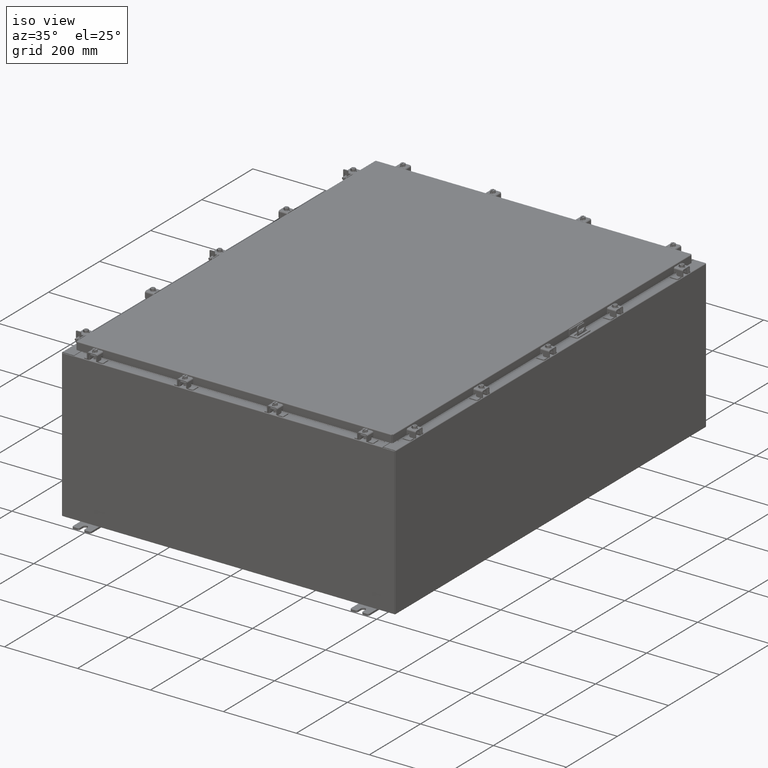
[diagram: clean part render]
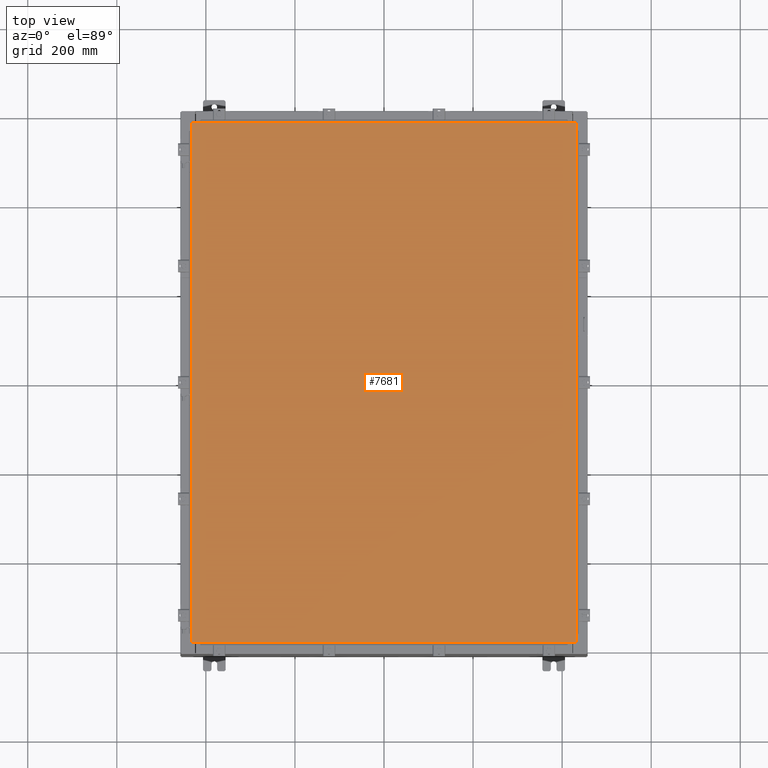
[diagram: tour spotlight — one face highlighted and labeled with its STEP entity id]
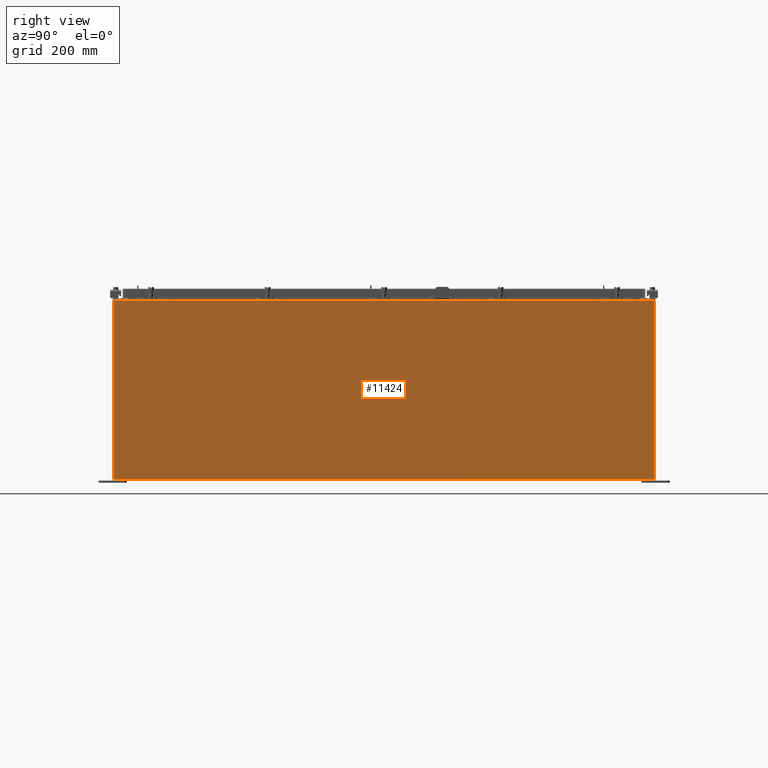
[diagram: tour spotlight — one face highlighted and labeled with its STEP entity id]
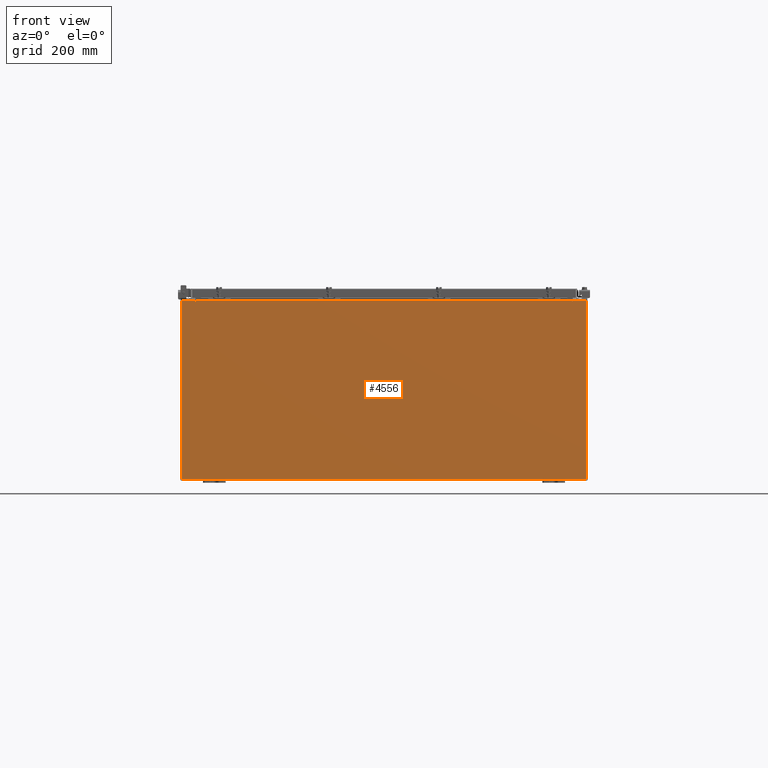
[diagram: tour spotlight — one face highlighted and labeled with its STEP entity id]
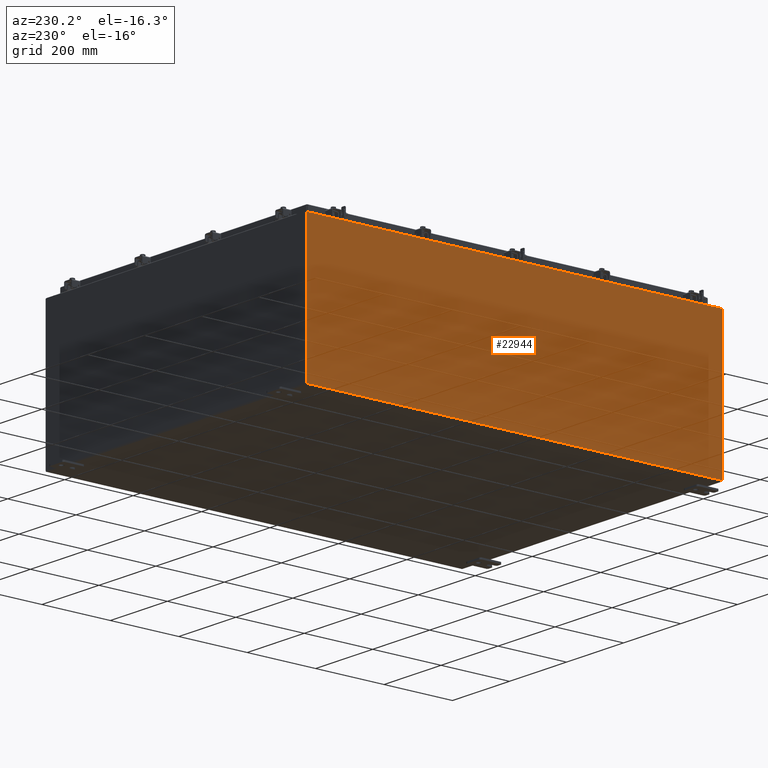
[diagram: tour spotlight — one face highlighted and labeled with its STEP entity id]
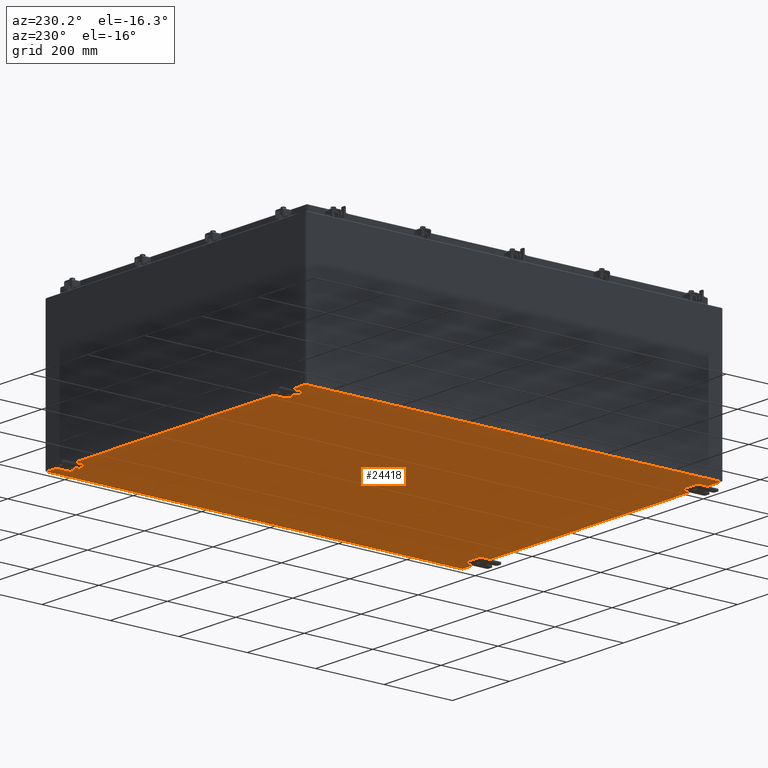
[diagram: tour spotlight — one face highlighted and labeled with its STEP entity id]
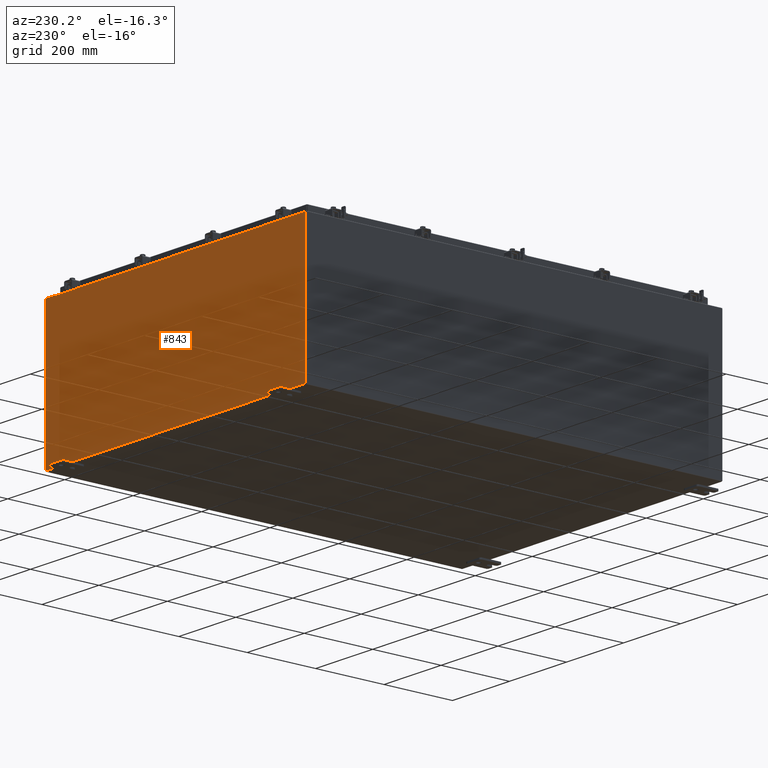
[diagram: tour spotlight — one face highlighted and labeled with its STEP entity id]
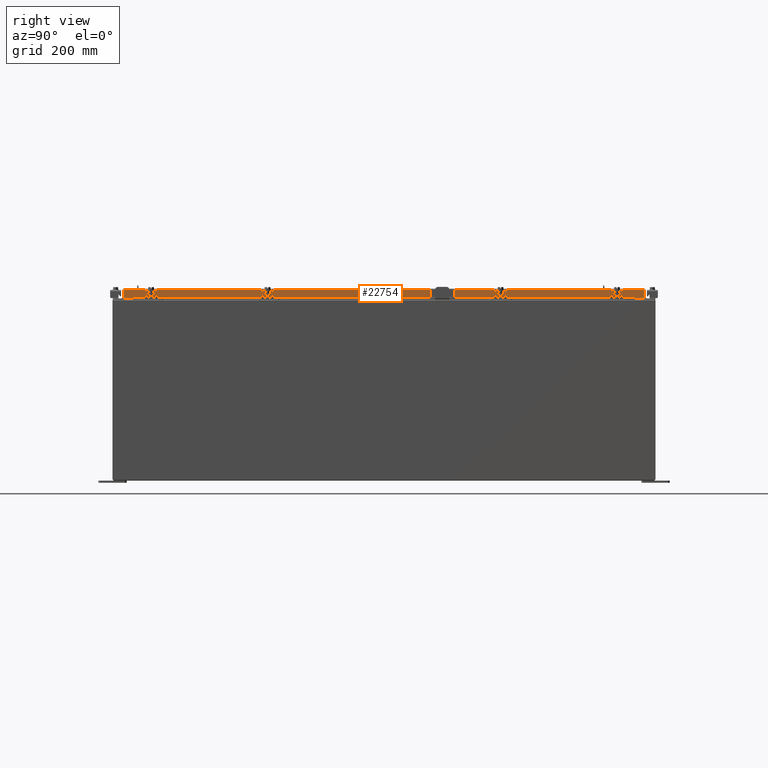
[diagram: tour spotlight — one face highlighted and labeled with its STEP entity id]
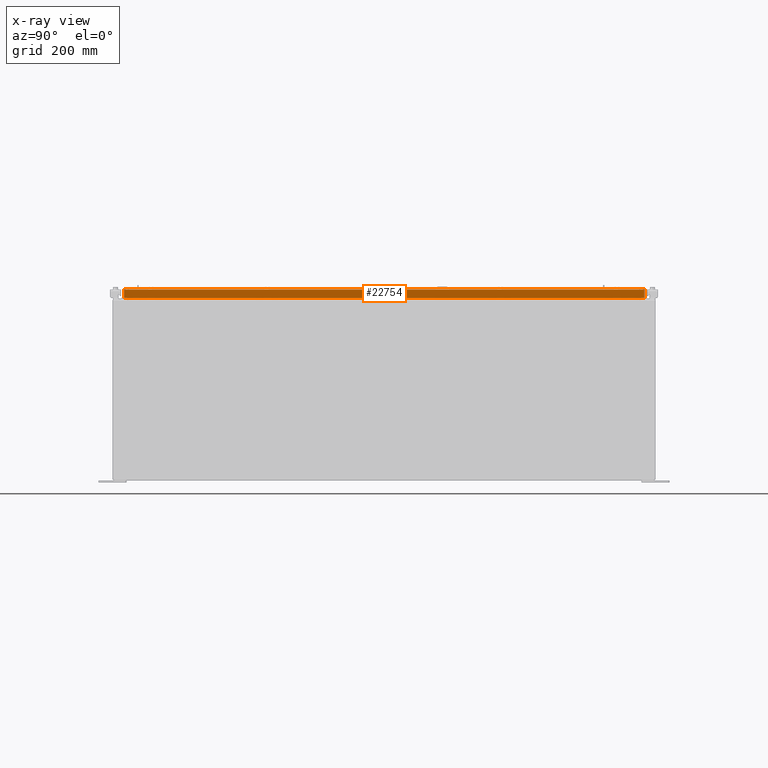
[diagram: x-ray of the same camera — body ghosted, this tour face saturated]
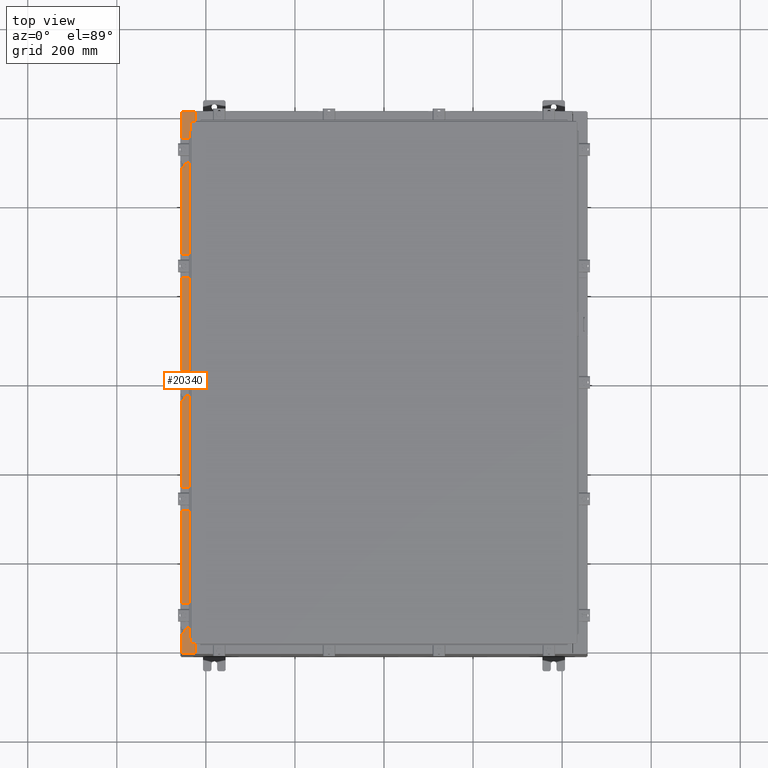
[diagram: tour spotlight — one face highlighted and labeled with its STEP entity id]
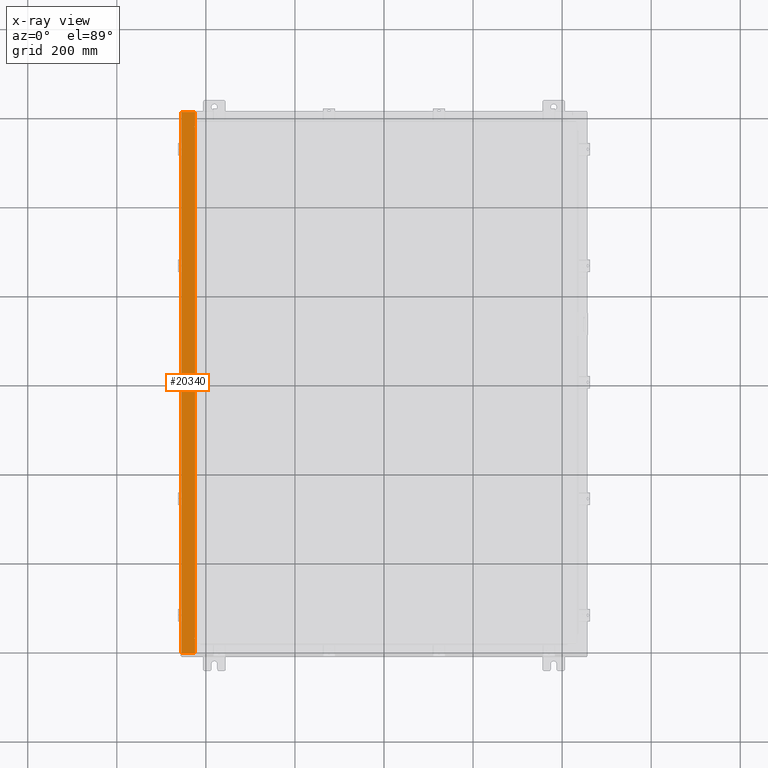
[diagram: x-ray of the same camera — body ghosted, this tour face saturated]
A machine part: a face-by-face anatomy tour. The part has 3106 B-rep faces; the first image is the clean iso view, then the 8 largest visible faces are spotlighted one at a time (largest first), each with its STEP entity span.

Face 1 — top view, entity #7681. In plain terms, the highlighted planar face has unit normal (0, 0, -1).
Definition (entity closure, byte-faithful):
#773 = DIRECTION ( 'NONE',  ( 0.0000000000000000000, 0.0000000000000000000, -1.000000000000000000 ) ) ;
#796 = LINE ( 'NONE', #14118, #11366 ) ;
#999 = CARTESIAN_POINT ( 'NONE',  ( 16.99030000000000100, -23.00629999999999600, -2.185478394931410600E-015 ) ) ;
#1170 = ORIENTED_EDGE ( 'NONE', *, *, #22418, .T. ) ;
#1179 = VERTEX_POINT ( 'NONE', #999 ) ;
#1404 = DIRECTION ( 'NONE',  ( 1.000000000000000000, -0.0000000000000000000, -0.0000000000000000000 ) ) ;
#1615 = CARTESIAN_POINT ( 'NONE',  ( 16.99029999999999800, 23.00630000000000000, 2.185478394931410600E-015 ) ) ;
#2108 = AXIS2_PLACEMENT_3D ( 'NONE', #23850, #773, #15534 ) ;
#3606 = CARTESIAN_POINT ( 'NONE',  ( -16.99029999999999800, -23.00630000000000000, 2.185478394931410600E-015 ) ) ;
#4101 = CARTESIAN_POINT ( 'NONE',  ( 16.99030000000000100, -23.00629999999999600, -2.185478394931410600E-015 ) ) ;
#4663 = CARTESIAN_POINT ( 'NONE',  ( 16.99029999999999800, 23.00630000000000000, 2.185478394931410600E-015 ) ) ;
#5331 = LINE ( 'NONE', #3606, #25727 ) ;
#6061 = ORIENTED_EDGE ( 'NONE', *, *, #25370, .T. ) ;
#7681 = ADVANCED_FACE ( 'NONE', ( #17893 ), #13410, .F. ) ;
#8728 = EDGE_LOOP ( 'NONE', ( #19726, #1170, #6061, #10768 ) ) ;
#8986 = VERTEX_POINT ( 'NONE', #23790 ) ;
#9134 = LINE ( 'NONE', #4101, #25216 ) ;
#9427 = VECTOR ( 'NONE', #15219, 39.37007874015748100 ) ;
#10768 = ORIENTED_EDGE ( 'NONE', *, *, #16902, .T. ) ;
#11366 = VECTOR ( 'NONE', #16209, 39.37007874015748100 ) ;
#12690 = DIRECTION ( 'NONE',  ( 0.0000000000000000000, 1.000000000000000000, 0.0000000000000000000 ) ) ;
#13410 = PLANE ( 'NONE',  #2108 ) ;
#14118 = CARTESIAN_POINT ( 'NONE',  ( -16.99029999999999800, 23.00629999999999600, 0.0000000000000000000 ) ) ;
#15219 = DIRECTION ( 'NONE',  ( -1.000000000000000000, -0.0000000000000000000, -0.0000000000000000000 ) ) ;
#15534 = DIRECTION ( 'NONE',  ( -1.000000000000000000, 0.0000000000000000000, -0.0000000000000000000 ) ) ;
#16209 = DIRECTION ( 'NONE',  ( 0.0000000000000000000, -1.000000000000000000, 0.0000000000000000000 ) ) ;
#16902 = EDGE_CURVE ( 'NONE', #8986, #17960, #796, .T. ) ;
#17893 = FACE_OUTER_BOUND ( 'NONE', #8728, .T. ) ;
#17952 = CARTESIAN_POINT ( 'NONE',  ( -16.99029999999999800, -23.00630000000000000, 2.185478394931410600E-015 ) ) ;
#17960 = VERTEX_POINT ( 'NONE', #17952 ) ;
#18376 = EDGE_CURVE ( 'NONE', #17960, #1179, #5331, .T. ) ;
#19726 = ORIENTED_EDGE ( 'NONE', *, *, #18376, .T. ) ;
#22418 = EDGE_CURVE ( 'NONE', #1179, #26373, #9134, .T. ) ;
#23790 = CARTESIAN_POINT ( 'NONE',  ( -16.99029999999999800, 23.00629999999999600, 0.0000000000000000000 ) ) ;
#23850 = CARTESIAN_POINT ( 'NONE',  ( 0.0000000000000000000, 0.0000000000000000000, 0.0000000000000000000 ) ) ;
#25216 = VECTOR ( 'NONE', #12690, 39.37007874015748100 ) ;
#25370 = EDGE_CURVE ( 'NONE', #26373, #8986, #25503, .T. ) ;
#25503 = LINE ( 'NONE', #4663, #9427 ) ;
#25727 = VECTOR ( 'NONE', #1404, 39.37007874015748100 ) ;
#26373 = VERTEX_POINT ( 'NONE', #1615 ) ;

Face 2 — right view, entity #11424. In plain terms, the highlighted planar face has unit normal (-1, 0, 0).
Definition (entity closure, byte-faithful):
#1587 = LINE ( 'NONE', #18046, #7170 ) ;
#2208 = ORIENTED_EDGE ( 'NONE', *, *, #17885, .T. ) ;
#2854 = AXIS2_PLACEMENT_3D ( 'NONE', #23995, #7276, #21996 ) ;
#2947 = CARTESIAN_POINT ( 'NONE',  ( 18.00000000000005000, -23.92529999999998900, 15.83760000000000200 ) ) ;
#3274 = DIRECTION ( 'NONE',  ( -0.0000000000000000000, -1.000000000000000000, -0.0000000000000000000 ) ) ;
#4014 = VECTOR ( 'NONE', #14063, 39.37007874015748100 ) ;
#4250 = LINE ( 'NONE', #24131, #26646 ) ;
#5144 = PLANE ( 'NONE',  #2854 ) ;
#6367 = EDGE_CURVE ( 'NONE', #16962, #17405, #25733, .T. ) ;
#7170 = VECTOR ( 'NONE', #3274, 39.37007874015748100 ) ;
#7276 = DIRECTION ( 'NONE',  ( -1.000000000000000000, 0.0000000000000000000, 3.430827668758846700E-015 ) ) ;
#9483 = DIRECTION ( 'NONE',  ( 3.430827668758847500E-015, 0.0000000000000000000, 1.000000000000000000 ) ) ;
#11424 = ADVANCED_FACE ( 'NONE', ( #14872 ), #5144, .F. ) ;
#13426 = EDGE_LOOP ( 'NONE', ( #13744, #2208, #18168, #17558 ) ) ;
#13744 = ORIENTED_EDGE ( 'NONE', *, *, #15762, .T. ) ;
#14052 = CARTESIAN_POINT ( 'NONE',  ( 18.00000000000005000, 23.92529999999998600, 15.83760000000001400 ) ) ;
#14063 = DIRECTION ( 'NONE',  ( -1.566960444969418600E-031, -1.000000000000000000, -4.567295697298285000E-017 ) ) ;
#14555 = EDGE_CURVE ( 'NONE', #16962, #26911, #4250, .T. ) ;
#14872 = FACE_OUTER_BOUND ( 'NONE', #13426, .T. ) ;
#15560 = DIRECTION ( 'NONE',  ( -3.430827668758847500E-015, 0.0000000000000000000, -1.000000000000000000 ) ) ;
#15762 = EDGE_CURVE ( 'NONE', #26911, #24736, #1587, .T. ) ;
#16013 = CARTESIAN_POINT ( 'NONE',  ( 17.99999999999999600, -23.92529999999998900, 0.01299999999999901400 ) ) ;
#16962 = VERTEX_POINT ( 'NONE', #26750 ) ;
#17405 = VERTEX_POINT ( 'NONE', #16013 ) ;
#17558 = ORIENTED_EDGE ( 'NONE', *, *, #14555, .T. ) ;
#17885 = EDGE_CURVE ( 'NONE', #24736, #17405, #18237, .T. ) ;
#18046 = CARTESIAN_POINT ( 'NONE',  ( 18.00000000000005000, 23.92529999999998900, 15.83760000000001400 ) ) ;
#18168 = ORIENTED_EDGE ( 'NONE', *, *, #6367, .F. ) ;
#18237 = LINE ( 'NONE', #25999, #23127 ) ;
#21996 = DIRECTION ( 'NONE',  ( 3.430827668758846700E-015, 0.0000000000000000000, 1.000000000000000000 ) ) ;
#23127 = VECTOR ( 'NONE', #15560, 39.37007874015748100 ) ;
#23995 = CARTESIAN_POINT ( 'NONE',  ( 17.99999999999999600, 0.0000000000000000000, -6.228613425554519900E-014 ) ) ;
#24131 = CARTESIAN_POINT ( 'NONE',  ( 17.99999999999999600, 23.92529999999998900, -6.228613425554519900E-014 ) ) ;
#24736 = VERTEX_POINT ( 'NONE', #2947 ) ;
#25733 = LINE ( 'NONE', #26608, #4014 ) ;
#25999 = CARTESIAN_POINT ( 'NONE',  ( 17.99999999999999600, -23.92529999999998900, -6.228613425554519900E-014 ) ) ;
#26608 = CARTESIAN_POINT ( 'NONE',  ( 17.99999999999999600, -23.92529999999998900, 0.01300000000000010700 ) ) ;
#26646 = VECTOR ( 'NONE', #9483, 39.37007874015748100 ) ;
#26750 = CARTESIAN_POINT ( 'NONE',  ( 17.99999999999999600, 23.92529999999998600, 0.01300000000000229300 ) ) ;
#26911 = VERTEX_POINT ( 'NONE', #14052 ) ;

Face 3 — front view, entity #4556. In plain terms, the highlighted planar face has unit normal (0, 1, -0).
Definition (entity closure, byte-faithful):
#479 = DIRECTION ( 'NONE',  ( -3.225867722578236700E-016, -1.000000000000000000, -2.013110121372518100E-016 ) ) ;
#561 = ORIENTED_EDGE ( 'NONE', *, *, #25284, .T. ) ;
#666 = LINE ( 'NONE', #20394, #11916 ) ;
#668 = DIRECTION ( 'NONE',  ( 1.000000000000000000, 3.225867722578232700E-016, 9.382400019813492300E-016 ) ) ;
#1049 = DIRECTION ( 'NONE',  ( 3.225867722578232700E-016, 1.000000000000000000, -2.013110121372520500E-016 ) ) ;
#1629 = DIRECTION ( 'NONE',  ( 9.992007221626408900E-016, -2.013110121372521300E-016, 1.000000000000000000 ) ) ;
#1747 = CARTESIAN_POINT ( 'NONE',  ( 16.63720000000000400, 0.0000000000000000000, 7.874950000000016100 ) ) ;
#1926 = DIRECTION ( 'NONE',  ( 0.0000000000000000000, 2.013110121372521000E-016, -1.000000000000000000 ) ) ;
#2866 = DIRECTION ( 'NONE',  ( 1.000000000000000000, 3.225867722578232700E-016, 9.382400019813492300E-016 ) ) ;
#3609 = ORIENTED_EDGE ( 'NONE', *, *, #22390, .T. ) ;
#3836 = CARTESIAN_POINT ( 'NONE',  ( -16.67455000000000000, 0.0000000000000000000, 7.874949999999983200 ) ) ;
#3972 = EDGE_CURVE ( 'NONE', #8046, #26725, #11004, .T. ) ;
#3989 = CARTESIAN_POINT ( 'NONE',  ( -16.67455000000000000, 0.0000000000000000000, -1.639108796198557900E-014 ) ) ;
#4023 = FACE_OUTER_BOUND ( 'NONE', #6581, .T. ) ;
#4556 = ADVANCED_FACE ( 'NONE', ( #4023 ), #4603, .F. ) ;
#4603 = PLANE ( 'NONE',  #16365 ) ;
#4966 = CARTESIAN_POINT ( 'NONE',  ( -17.92530000000000000, 0.0000000000000000000, 7.925299999999983100 ) ) ;
#5346 = DIRECTION ( 'NONE',  ( -1.000000000000000000, -3.225867722578232700E-016, -9.992007221626408900E-016 ) ) ;
#5708 = ORIENTED_EDGE ( 'NONE', *, *, #11761, .F. ) ;
#6581 = EDGE_LOOP ( 'NONE', ( #9366, #8069, #6881, #3609, #9565, #23199, #5708, #11087, #12758, #17382, #561, #10987 ) ) ;
#6881 = ORIENTED_EDGE ( 'NONE', *, *, #19621, .F. ) ;
#7496 = CARTESIAN_POINT ( 'NONE',  ( -17.92530000000000000, 0.0000000000000000000, -7.925300000000016000 ) ) ;
#8046 = VERTEX_POINT ( 'NONE', #24869 ) ;
#8069 = ORIENTED_EDGE ( 'NONE', *, *, #16249, .F. ) ;
#8168 = VERTEX_POINT ( 'NONE', #10462 ) ;
#8298 = CARTESIAN_POINT ( 'NONE',  ( -17.92530000000000000, 0.0000000000000000000, 7.925299999999983100 ) ) ;
#8563 = VERTEX_POINT ( 'NONE', #24657 ) ;
#8917 = VECTOR ( 'NONE', #20892, 39.37007874015748100 ) ;
#8934 = VECTOR ( 'NONE', #668, 39.37007874015748100 ) ;
#9127 = CARTESIAN_POINT ( 'NONE',  ( 17.92530000000000000, 0.0000000000000000000, 7.925300000000014200 ) ) ;
#9366 = ORIENTED_EDGE ( 'NONE', *, *, #10102, .F. ) ;
#9565 = ORIENTED_EDGE ( 'NONE', *, *, #15908, .F. ) ;
#9809 = VECTOR ( 'NONE', #16818, 39.37007874015748100 ) ;
#10102 = EDGE_CURVE ( 'NONE', #14129, #21626, #24712, .T. ) ;
#10332 = EDGE_CURVE ( 'NONE', #16177, #8563, #15205, .T. ) ;
#10462 = CARTESIAN_POINT ( 'NONE',  ( -16.63720000000000400, -4.370956789862821100E-015, 7.912299999999989500 ) ) ;
#10496 = CARTESIAN_POINT ( 'NONE',  ( -16.63720000000000400, -4.370956789862821100E-015, 7.912299999999989500 ) ) ;
#10851 = CARTESIAN_POINT ( 'NONE',  ( 16.67455000000000000, 0.0000000000000000000, 7.874950000000016100 ) ) ;
#10987 = ORIENTED_EDGE ( 'NONE', *, *, #24710, .T. ) ;
#11004 = LINE ( 'NONE', #7496, #21509 ) ;
#11087 = ORIENTED_EDGE ( 'NONE', *, *, #10332, .T. ) ;
#11195 = CARTESIAN_POINT ( 'NONE',  ( -17.92530000000000000, 0.0000000000000000000, 7.925299999999983100 ) ) ;
#11465 = CARTESIAN_POINT ( 'NONE',  ( -17.92530000000000000, 0.0000000000000000000, -7.925300000000016000 ) ) ;
#11705 = VERTEX_POINT ( 'NONE', #1747 ) ;
#11761 = EDGE_CURVE ( 'NONE', #16177, #25966, #14535, .T. ) ;
#11916 = VECTOR ( 'NONE', #16193, 39.37007874015748100 ) ;
#12758 = ORIENTED_EDGE ( 'NONE', *, *, #13513, .T. ) ;
#12771 = CIRCLE ( 'NONE', #24086, 0.01867499999999949400 ) ;
#13513 = EDGE_CURVE ( 'NONE', #8563, #8046, #19144, .T. ) ;
#13546 = VECTOR ( 'NONE', #20846, 39.37007874015748100 ) ;
#13696 = CARTESIAN_POINT ( 'NONE',  ( -16.65587500000000200, 0.0000000000000000000, 7.874949999999983200 ) ) ;
#14129 = VERTEX_POINT ( 'NONE', #3836 ) ;
#14470 = LINE ( 'NONE', #18484, #25592 ) ;
#14535 = LINE ( 'NONE', #25092, #8917 ) ;
#14574 = DIRECTION ( 'NONE',  ( 3.225867722578232700E-016, 1.000000000000000000, -2.013110121372520500E-016 ) ) ;
#15046 = CARTESIAN_POINT ( 'NONE',  ( -17.92530000000000000, 0.0000000000000000000, 7.925299999999983100 ) ) ;
#15205 = LINE ( 'NONE', #11195, #8934 ) ;
#15243 = DIRECTION ( 'NONE',  ( -9.992007221626408900E-016, 2.013110121372521300E-016, -1.000000000000000000 ) ) ;
#15405 = VERTEX_POINT ( 'NONE', #8298 ) ;
#15406 = LINE ( 'NONE', #10496, #9809 ) ;
#15805 = DIRECTION ( 'NONE',  ( 0.0000000000000000000, 2.013110121372521000E-016, -1.000000000000000000 ) ) ;
#15908 = EDGE_CURVE ( 'NONE', #11705, #19675, #14470, .T. ) ;
#16177 = VERTEX_POINT ( 'NONE', #17638 ) ;
#16193 = DIRECTION ( 'NONE',  ( -9.992007221626408900E-016, 2.013110121372521300E-016, -1.000000000000000000 ) ) ;
#16249 = EDGE_CURVE ( 'NONE', #24741, #14129, #12771, .T. ) ;
#16340 = VECTOR ( 'NONE', #25467, 39.37007874015748100 ) ;
#16365 = AXIS2_PLACEMENT_3D ( 'NONE', #23568, #479, #15243 ) ;
#16818 = DIRECTION ( 'NONE',  ( 1.000000000000000000, 3.225867722578232700E-016, 9.992007221626408900E-016 ) ) ;
#16983 = LINE ( 'NONE', #15046, #16340 ) ;
#17007 = LINE ( 'NONE', #4966, #26866 ) ;
#17382 = ORIENTED_EDGE ( 'NONE', *, *, #3972, .T. ) ;
#17638 = CARTESIAN_POINT ( 'NONE',  ( 16.67455000000000700, 0.0000000000000000000, 7.925300000000014200 ) ) ;
#18484 = CARTESIAN_POINT ( 'NONE',  ( 16.63720000000000400, 0.0000000000000000000, 1.639108796198557900E-014 ) ) ;
#18485 = CARTESIAN_POINT ( 'NONE',  ( 16.63720000000000400, 0.0000000000000000000, 7.912300000000016100 ) ) ;
#19144 = LINE ( 'NONE', #9127, #24034 ) ;
#19162 = AXIS2_PLACEMENT_3D ( 'NONE', #27106, #14574, #1926 ) ;
#19584 = DIRECTION ( 'NONE',  ( -9.992007221626414800E-016, 2.013110121372520300E-016, -1.000000000000000000 ) ) ;
#19621 = EDGE_CURVE ( 'NONE', #8168, #24741, #666, .T. ) ;
#19675 = VERTEX_POINT ( 'NONE', #18485 ) ;
#19792 = CARTESIAN_POINT ( 'NONE',  ( -16.63720000000000400, 0.0000000000000000000, 7.874949999999983200 ) ) ;
#20394 = CARTESIAN_POINT ( 'NONE',  ( -16.63720000000000400, 0.0000000000000000000, -1.639108796198557900E-014 ) ) ;
#20718 = EDGE_CURVE ( 'NONE', #25966, #11705, #21041, .T. ) ;
#20846 = DIRECTION ( 'NONE',  ( 9.992007221626408900E-016, -2.013110121372521300E-016, 1.000000000000000000 ) ) ;
#20892 = DIRECTION ( 'NONE',  ( -8.781065633016651300E-014, 2.013110121372241000E-016, -1.000000000000000000 ) ) ;
#21041 = CIRCLE ( 'NONE', #19162, 0.01867499999999949400 ) ;
#21509 = VECTOR ( 'NONE', #5346, 39.37007874015748100 ) ;
#21626 = VERTEX_POINT ( 'NONE', #26674 ) ;
#22390 = EDGE_CURVE ( 'NONE', #8168, #19675, #15406, .T. ) ;
#23199 = ORIENTED_EDGE ( 'NONE', *, *, #20718, .F. ) ;
#23568 = CARTESIAN_POINT ( 'NONE',  ( 0.0000000000000000000, 0.0000000000000000000, 0.0000000000000000000 ) ) ;
#24034 = VECTOR ( 'NONE', #19584, 39.37007874015748100 ) ;
#24086 = AXIS2_PLACEMENT_3D ( 'NONE', #13696, #1049, #15805 ) ;
#24657 = CARTESIAN_POINT ( 'NONE',  ( 17.92530000000000000, 0.0000000000000000000, 7.925300000000014200 ) ) ;
#24710 = EDGE_CURVE ( 'NONE', #15405, #21626, #17007, .T. ) ;
#24712 = LINE ( 'NONE', #3989, #13546 ) ;
#24741 = VERTEX_POINT ( 'NONE', #19792 ) ;
#24869 = CARTESIAN_POINT ( 'NONE',  ( 17.92530000000000000, 0.0000000000000000000, -7.925299999999983100 ) ) ;
#25092 = CARTESIAN_POINT ( 'NONE',  ( 16.67454999999931800, 0.0000000000000000000, -1.431078571481024200E-012 ) ) ;
#25284 = EDGE_CURVE ( 'NONE', #26725, #15405, #16983, .T. ) ;
#25467 = DIRECTION ( 'NONE',  ( 9.992007221626408900E-016, -2.013110121372521300E-016, 1.000000000000000000 ) ) ;
#25592 = VECTOR ( 'NONE', #1629, 39.37007874015748100 ) ;
#25966 = VERTEX_POINT ( 'NONE', #10851 ) ;
#26674 = CARTESIAN_POINT ( 'NONE',  ( -16.67455000000000000, 0.0000000000000000000, 7.925299999999983100 ) ) ;
#26725 = VERTEX_POINT ( 'NONE', #11465 ) ;
#26866 = VECTOR ( 'NONE', #2866, 39.37007874015748100 ) ;
#27106 = CARTESIAN_POINT ( 'NONE',  ( 16.65587500000000200, 0.0000000000000000000, 7.874950000000016100 ) ) ;

Face 4 — auxiliary view, entity #22944. In plain terms, the highlighted planar face has unit normal (1, 0, 0).
Definition (entity closure, byte-faithful):
#862 = EDGE_CURVE ( 'NONE', #6673, #1187, #7175, .T. ) ;
#1004 = VECTOR ( 'NONE', #10105, 39.37007874015748100 ) ;
#1187 = VERTEX_POINT ( 'NONE', #26266 ) ;
#1248 = PLANE ( 'NONE',  #20302 ) ;
#1593 = VECTOR ( 'NONE', #3341, 39.37007874015748100 ) ;
#1904 = ORIENTED_EDGE ( 'NONE', *, *, #10990, .T. ) ;
#3341 = DIRECTION ( 'NONE',  ( 0.0000000000000000000, 1.000000000000000000, 0.0000000000000000000 ) ) ;
#3521 = DIRECTION ( 'NONE',  ( 3.430827668758847900E-015, 0.0000000000000000000, -1.000000000000000000 ) ) ;
#5057 = VERTEX_POINT ( 'NONE', #10250 ) ;
#6673 = VERTEX_POINT ( 'NONE', #17586 ) ;
#7175 = LINE ( 'NONE', #9035, #1593 ) ;
#7607 = VECTOR ( 'NONE', #9773, 39.37007874015748100 ) ;
#7705 = VERTEX_POINT ( 'NONE', #9188 ) ;
#9035 = CARTESIAN_POINT ( 'NONE',  ( -18.00000000000006000, -23.92529999999998900, 15.83759999999998200 ) ) ;
#9055 = ORIENTED_EDGE ( 'NONE', *, *, #19567, .F. ) ;
#9188 = CARTESIAN_POINT ( 'NONE',  ( -18.00000000000000400, -23.92529999999998600, 0.01300000000000010700 ) ) ;
#9773 = DIRECTION ( 'NONE',  ( -0.0000000000000000000, 1.000000000000000000, -0.0000000000000000000 ) ) ;
#10105 = DIRECTION ( 'NONE',  ( -3.430827668758847900E-015, 0.0000000000000000000, 1.000000000000000000 ) ) ;
#10154 = FACE_OUTER_BOUND ( 'NONE', #20989, .T. ) ;
#10250 = CARTESIAN_POINT ( 'NONE',  ( -18.00000000000000400, 23.92529999999998900, 0.01300000000000010700 ) ) ;
#10990 = EDGE_CURVE ( 'NONE', #7705, #6673, #17823, .T. ) ;
#11626 = LINE ( 'NONE', #11935, #20825 ) ;
#11867 = DIRECTION ( 'NONE',  ( 1.000000000000000000, 0.0000000000000000000, 3.430827668758847900E-015 ) ) ;
#11935 = CARTESIAN_POINT ( 'NONE',  ( -18.00000000000000400, 23.92529999999998900, -6.228613425554519900E-014 ) ) ;
#16582 = ORIENTED_EDGE ( 'NONE', *, *, #18353, .T. ) ;
#17586 = CARTESIAN_POINT ( 'NONE',  ( -18.00000000000006000, -23.92529999999998600, 15.83759999999998200 ) ) ;
#17823 = LINE ( 'NONE', #24765, #1004 ) ;
#18353 = EDGE_CURVE ( 'NONE', #1187, #5057, #11626, .T. ) ;
#18825 = LINE ( 'NONE', #20216, #7607 ) ;
#19567 = EDGE_CURVE ( 'NONE', #7705, #5057, #18825, .T. ) ;
#20216 = CARTESIAN_POINT ( 'NONE',  ( -18.00000000000000400, 23.92529999999998900, 0.01300000000000010700 ) ) ;
#20302 = AXIS2_PLACEMENT_3D ( 'NONE', #24406, #11867, #26541 ) ;
#20825 = VECTOR ( 'NONE', #3521, 39.37007874015748100 ) ;
#20989 = EDGE_LOOP ( 'NONE', ( #24762, #16582, #9055, #1904 ) ) ;
#22944 = ADVANCED_FACE ( 'NONE', ( #10154 ), #1248, .F. ) ;
#24406 = CARTESIAN_POINT ( 'NONE',  ( -18.00000000000000400, 0.0000000000000000000, -6.228613425554519900E-014 ) ) ;
#24762 = ORIENTED_EDGE ( 'NONE', *, *, #862, .T. ) ;
#24765 = CARTESIAN_POINT ( 'NONE',  ( -18.00000000000000400, -23.92529999999999600, -6.228613425554519900E-014 ) ) ;
#26266 = CARTESIAN_POINT ( 'NONE',  ( -18.00000000000006000, 23.92529999999998900, 15.83759999999999500 ) ) ;
#26541 = DIRECTION ( 'NONE',  ( 3.430827668758847900E-015, 0.0000000000000000000, -1.000000000000000000 ) ) ;

Face 5 — auxiliary view, entity #24418. In plain terms, the highlighted planar face has unit normal (0, 0, -1).
Definition (entity closure, byte-faithful):
#2063 = DIRECTION ( 'NONE',  ( -1.000000000000000000, 0.0000000000000000000, -0.0000000000000000000 ) ) ;
#2631 = EDGE_CURVE ( 'NONE', #22502, #18724, #10738, .T. ) ;
#3280 = ORIENTED_EDGE ( 'NONE', *, *, #7866, .T. ) ;
#3727 = VECTOR ( 'NONE', #9824, 39.37007874015748100 ) ;
#6158 = EDGE_CURVE ( 'NONE', #11398, #20728, #9360, .T. ) ;
#7596 = CARTESIAN_POINT ( 'NONE',  ( -17.91230000000000500, -23.92529999999998900, -0.07470000000000015500 ) ) ;
#7676 = CARTESIAN_POINT ( 'NONE',  ( -18.00000000000000400, -23.92530000000000400, -0.07470000000000015500 ) ) ;
#7866 = EDGE_CURVE ( 'NONE', #11398, #18724, #8992, .T. ) ;
#8992 = LINE ( 'NONE', #7596, #25734 ) ;
#9320 = CARTESIAN_POINT ( 'NONE',  ( -17.91230000000000500, -23.92529999999998600, -0.07470000000000015500 ) ) ;
#9360 = LINE ( 'NONE', #7676, #3727 ) ;
#9751 = DIRECTION ( 'NONE',  ( -0.0000000000000000000, 1.000000000000000000, -0.0000000000000000000 ) ) ;
#9824 = DIRECTION ( 'NONE',  ( 1.000000000000000000, 1.214154663850783700E-016, 0.0000000000000000000 ) ) ;
#10738 = LINE ( 'NONE', #13255, #15681 ) ;
#10801 = CARTESIAN_POINT ( 'NONE',  ( -17.91230000000000500, 23.92529999999998900, -0.07470000000000015500 ) ) ;
#11233 = DIRECTION ( 'NONE',  ( -1.000000000000000000, -0.0000000000000000000, -0.0000000000000000000 ) ) ;
#11398 = VERTEX_POINT ( 'NONE', #9320 ) ;
#12788 = CARTESIAN_POINT ( 'NONE',  ( 17.91229999999999500, 23.92529999999998900, -0.07469999999999688000 ) ) ;
#12893 = VECTOR ( 'NONE', #14916, 39.37007874015748100 ) ;
#13255 = CARTESIAN_POINT ( 'NONE',  ( -18.00000000000000400, 23.92530000000000000, -0.07470000000000015500 ) ) ;
#14357 = ORIENTED_EDGE ( 'NONE', *, *, #2631, .F. ) ;
#14723 = DIRECTION ( 'NONE',  ( 0.0000000000000000000, 0.0000000000000000000, -1.000000000000000000 ) ) ;
#14916 = DIRECTION ( 'NONE',  ( -0.0000000000000000000, -1.000000000000000000, -8.208677865577646300E-017 ) ) ;
#15681 = VECTOR ( 'NONE', #11233, 39.37007874015748100 ) ;
#16254 = ORIENTED_EDGE ( 'NONE', *, *, #6158, .F. ) ;
#16456 = PLANE ( 'NONE',  #26189 ) ;
#16710 = FACE_OUTER_BOUND ( 'NONE', #19346, .T. ) ;
#18496 = LINE ( 'NONE', #12788, #12893 ) ;
#18724 = VERTEX_POINT ( 'NONE', #10801 ) ;
#18842 = CARTESIAN_POINT ( 'NONE',  ( 0.0000000000000000000, 0.0000000000000000000, -0.07470000000000015500 ) ) ;
#19309 = EDGE_CURVE ( 'NONE', #22502, #20728, #18496, .T. ) ;
#19346 = EDGE_LOOP ( 'NONE', ( #16254, #3280, #14357, #22274 ) ) ;
#20728 = VERTEX_POINT ( 'NONE', #24998 ) ;
#21308 = CARTESIAN_POINT ( 'NONE',  ( 17.91229999999999500, 23.92529999999998600, -0.07469999999999688000 ) ) ;
#22274 = ORIENTED_EDGE ( 'NONE', *, *, #19309, .T. ) ;
#22502 = VERTEX_POINT ( 'NONE', #21308 ) ;
#24418 = ADVANCED_FACE ( 'NONE', ( #16710 ), #16456, .T. ) ;
#24998 = CARTESIAN_POINT ( 'NONE',  ( 17.91229999999999500, -23.92530000000000000, -0.07470000000000015500 ) ) ;
#25734 = VECTOR ( 'NONE', #9751, 39.37007874015748100 ) ;
#26189 = AXIS2_PLACEMENT_3D ( 'NONE', #18842, #14723, #2063 ) ;

Face 6 — auxiliary view, entity #843. In plain terms, the highlighted planar face has unit normal (0, -1, 0).
Definition (entity closure, byte-faithful):
#342 = AXIS2_PLACEMENT_3D ( 'NONE', #17126, #18407, #23200 ) ;
#468 = EDGE_CURVE ( 'NONE', #13441, #22929, #25115, .T. ) ;
#592 = CARTESIAN_POINT ( 'NONE',  ( -16.67455000000000000, 0.0000000000000000000, 7.874950000000001900 ) ) ;
#611 = VERTEX_POINT ( 'NONE', #6612 ) ;
#843 = ADVANCED_FACE ( 'NONE', ( #7343 ), #27095, .F. ) ;
#875 = CARTESIAN_POINT ( 'NONE',  ( 17.92530000000000000, 0.0000000000000000000, 7.925300000000000900 ) ) ;
#1818 = EDGE_CURVE ( 'NONE', #19573, #5898, #25877, .T. ) ;
#1967 = EDGE_CURVE ( 'NONE', #24424, #23474, #12749, .T. ) ;
#2050 = LINE ( 'NONE', #16603, #23741 ) ;
#2178 = EDGE_CURVE ( 'NONE', #26175, #20735, #24891, .T. ) ;
#2195 = ORIENTED_EDGE ( 'NONE', *, *, #1818, .F. ) ;
#2281 = CARTESIAN_POINT ( 'NONE',  ( -17.92530000000000000, 0.0000000000000000000, -7.925299999999997300 ) ) ;
#2610 = EDGE_CURVE ( 'NONE', #24424, #26175, #16344, .T. ) ;
#2951 = CARTESIAN_POINT ( 'NONE',  ( 16.63720000000000400, 0.0000000000000000000, 0.0000000000000000000 ) ) ;
#2994 = AXIS2_PLACEMENT_3D ( 'NONE', #22223, #20751, #20665 ) ;
#3259 = VECTOR ( 'NONE', #3390, 39.37007874015748100 ) ;
#3390 = DIRECTION ( 'NONE',  ( 0.0000000000000000000, 0.0000000000000000000, -1.000000000000000000 ) ) ;
#3429 = LINE ( 'NONE', #13771, #24490 ) ;
#3495 = EDGE_CURVE ( 'NONE', #611, #7707, #3429, .T. ) ;
#3719 = CARTESIAN_POINT ( 'NONE',  ( 16.65587500000000200, 0.0000000000000000000, 7.874950000000001900 ) ) ;
#4986 = CARTESIAN_POINT ( 'NONE',  ( 16.63720000000000400, 0.0000000000000000000, 7.912300000000002800 ) ) ;
#5850 = DIRECTION ( 'NONE',  ( 0.0000000000000000000, 0.0000000000000000000, -1.000000000000000000 ) ) ;
#5884 = CARTESIAN_POINT ( 'NONE',  ( -17.92530000000000000, 0.0000000000000000000, 7.925300000000000900 ) ) ;
#5898 = VERTEX_POINT ( 'NONE', #592 ) ;
#6612 = CARTESIAN_POINT ( 'NONE',  ( -16.63720000000000400, -4.370956789862821100E-015, 7.912300000000007200 ) ) ;
#6894 = AXIS2_PLACEMENT_3D ( 'NONE', #3719, #18482, #5850 ) ;
#7191 = CARTESIAN_POINT ( 'NONE',  ( 16.67455000000000000, 0.0000000000000000000, 7.874950000000001900 ) ) ;
#7343 = FACE_OUTER_BOUND ( 'NONE', #21698, .T. ) ;
#7707 = VERTEX_POINT ( 'NONE', #4986 ) ;
#7748 = VERTEX_POINT ( 'NONE', #19815 ) ;
#8022 = DIRECTION ( 'NONE',  ( 1.000000000000000000, 0.0000000000000000000, -6.096072018129154100E-017 ) ) ;
#8558 = CARTESIAN_POINT ( 'NONE',  ( -16.67455000000000000, 0.0000000000000000000, 7.925300000000000900 ) ) ;
#9102 = CARTESIAN_POINT ( 'NONE',  ( 17.92530000000000000, 0.0000000000000000000, 7.925300000000000900 ) ) ;
#9702 = LINE ( 'NONE', #2951, #14642 ) ;
#9967 = EDGE_CURVE ( 'NONE', #23474, #7748, #26691, .T. ) ;
#10163 = ORIENTED_EDGE ( 'NONE', *, *, #26736, .F. ) ;
#10421 = EDGE_CURVE ( 'NONE', #5898, #19300, #13581, .T. ) ;
#10931 = DIRECTION ( 'NONE',  ( 0.0000000000000000000, 0.0000000000000000000, -1.000000000000000000 ) ) ;
#11009 = ORIENTED_EDGE ( 'NONE', *, *, #1967, .F. ) ;
#11026 = ORIENTED_EDGE ( 'NONE', *, *, #10421, .F. ) ;
#11747 = DIRECTION ( 'NONE',  ( 1.000000000000000000, 0.0000000000000000000, 0.0000000000000000000 ) ) ;
#12749 = LINE ( 'NONE', #20566, #23243 ) ;
#13223 = EDGE_CURVE ( 'NONE', #22929, #19300, #24397, .T. ) ;
#13441 = VERTEX_POINT ( 'NONE', #2281 ) ;
#13574 = DIRECTION ( 'NONE',  ( 0.0000000000000000000, 0.0000000000000000000, 1.000000000000000000 ) ) ;
#13581 = LINE ( 'NONE', #17719, #24055 ) ;
#13735 = VECTOR ( 'NONE', #10931, 39.37007874015748100 ) ;
#13771 = CARTESIAN_POINT ( 'NONE',  ( -16.63720000000000400, -4.370956789862821100E-015, 7.912300000000007200 ) ) ;
#13879 = CARTESIAN_POINT ( 'NONE',  ( -17.92530000000000000, 0.0000000000000000000, 7.925300000000000900 ) ) ;
#13979 = VECTOR ( 'NONE', #24050, 39.37007874015748100 ) ;
#14318 = ORIENTED_EDGE ( 'NONE', *, *, #9967, .F. ) ;
#14642 = VECTOR ( 'NONE', #13574, 39.37007874015748100 ) ;
#15161 = LINE ( 'NONE', #24358, #3259 ) ;
#15303 = CARTESIAN_POINT ( 'NONE',  ( -17.92530000000000000, 0.0000000000000000000, 7.925300000000000900 ) ) ;
#15400 = DIRECTION ( 'NONE',  ( 1.000000000000000000, 0.0000000000000000000, -6.096072018129154100E-017 ) ) ;
#15702 = DIRECTION ( 'NONE',  ( 0.0000000000000000000, 0.0000000000000000000, 1.000000000000000000 ) ) ;
#16344 = LINE ( 'NONE', #15303, #26840 ) ;
#16603 = CARTESIAN_POINT ( 'NONE',  ( -17.92530000000000000, 0.0000000000000000000, -7.925299999999997300 ) ) ;
#17126 = CARTESIAN_POINT ( 'NONE',  ( 0.0000000000000000000, 0.0000000000000000000, 0.0000000000000000000 ) ) ;
#17441 = ORIENTED_EDGE ( 'NONE', *, *, #18513, .T. ) ;
#17719 = CARTESIAN_POINT ( 'NONE',  ( -16.67455000000000000, 0.0000000000000000000, 0.0000000000000000000 ) ) ;
#18407 = DIRECTION ( 'NONE',  ( 0.0000000000000000000, -1.000000000000000000, 0.0000000000000000000 ) ) ;
#18482 = DIRECTION ( 'NONE',  ( -0.0000000000000000000, 1.000000000000000000, -0.0000000000000000000 ) ) ;
#18513 = EDGE_CURVE ( 'NONE', #20735, #13441, #2050, .T. ) ;
#18790 = CARTESIAN_POINT ( 'NONE',  ( 17.92530000000000000, 0.0000000000000000000, -7.925299999999997300 ) ) ;
#18848 = VECTOR ( 'NONE', #8022, 39.37007874015748100 ) ;
#18931 = CARTESIAN_POINT ( 'NONE',  ( 16.67455000000000700, 0.0000000000000000000, 7.925300000000000900 ) ) ;
#19300 = VERTEX_POINT ( 'NONE', #8558 ) ;
#19573 = VERTEX_POINT ( 'NONE', #22332 ) ;
#19737 = ORIENTED_EDGE ( 'NONE', *, *, #468, .T. ) ;
#19815 = CARTESIAN_POINT ( 'NONE',  ( 16.63720000000000400, 0.0000000000000000000, 7.874950000000001900 ) ) ;
#20121 = CARTESIAN_POINT ( 'NONE',  ( -17.92530000000000000, 0.0000000000000000000, 7.925300000000000900 ) ) ;
#20506 = EDGE_CURVE ( 'NONE', #611, #19573, #15161, .T. ) ;
#20566 = CARTESIAN_POINT ( 'NONE',  ( 16.67454999999931800, 0.0000000000000000000, -1.447879436642059600E-012 ) ) ;
#20665 = DIRECTION ( 'NONE',  ( 0.0000000000000000000, 0.0000000000000000000, -1.000000000000000000 ) ) ;
#20735 = VERTEX_POINT ( 'NONE', #18790 ) ;
#20751 = DIRECTION ( 'NONE',  ( -0.0000000000000000000, 1.000000000000000000, -0.0000000000000000000 ) ) ;
#20838 = DIRECTION ( 'NONE',  ( -8.681145560800387200E-014, 0.0000000000000000000, -1.000000000000000000 ) ) ;
#21698 = EDGE_LOOP ( 'NONE', ( #11026, #2195, #22292, #27192, #10163, #14318, #11009, #25451, #24145, #17441, #19737, #25631 ) ) ;
#22223 = CARTESIAN_POINT ( 'NONE',  ( -16.65587500000000200, 0.0000000000000000000, 7.874950000000001900 ) ) ;
#22292 = ORIENTED_EDGE ( 'NONE', *, *, #20506, .F. ) ;
#22332 = CARTESIAN_POINT ( 'NONE',  ( -16.63720000000000400, 0.0000000000000000000, 7.874950000000001900 ) ) ;
#22929 = VERTEX_POINT ( 'NONE', #13879 ) ;
#23200 = DIRECTION ( 'NONE',  ( 0.0000000000000000000, -0.0000000000000000000, -1.000000000000000000 ) ) ;
#23243 = VECTOR ( 'NONE', #20838, 39.37007874015748100 ) ;
#23474 = VERTEX_POINT ( 'NONE', #7191 ) ;
#23741 = VECTOR ( 'NONE', #27144, 39.37007874015748100 ) ;
#24050 = DIRECTION ( 'NONE',  ( -0.0000000000000000000, -0.0000000000000000000, 1.000000000000000000 ) ) ;
#24055 = VECTOR ( 'NONE', #15702, 39.37007874015748100 ) ;
#24145 = ORIENTED_EDGE ( 'NONE', *, *, #2178, .T. ) ;
#24358 = CARTESIAN_POINT ( 'NONE',  ( -16.63720000000000400, 0.0000000000000000000, 0.0000000000000000000 ) ) ;
#24397 = LINE ( 'NONE', #5884, #18848 ) ;
#24424 = VERTEX_POINT ( 'NONE', #18931 ) ;
#24490 = VECTOR ( 'NONE', #11747, 39.37007874015748100 ) ;
#24891 = LINE ( 'NONE', #9102, #13735 ) ;
#25115 = LINE ( 'NONE', #20121, #13979 ) ;
#25451 = ORIENTED_EDGE ( 'NONE', *, *, #2610, .T. ) ;
#25631 = ORIENTED_EDGE ( 'NONE', *, *, #13223, .T. ) ;
#25877 = CIRCLE ( 'NONE', #2994, 0.01867499999999949400 ) ;
#26175 = VERTEX_POINT ( 'NONE', #875 ) ;
#26691 = CIRCLE ( 'NONE', #6894, 0.01867499999999949400 ) ;
#26736 = EDGE_CURVE ( 'NONE', #7748, #7707, #9702, .T. ) ;
#26840 = VECTOR ( 'NONE', #15400, 39.37007874015748100 ) ;
#27095 = PLANE ( 'NONE',  #342 ) ;
#27144 = DIRECTION ( 'NONE',  ( -1.000000000000000000, -0.0000000000000000000, -0.0000000000000000000 ) ) ;
#27192 = ORIENTED_EDGE ( 'NONE', *, *, #3495, .T. ) ;

Face 7 — right view, entity #22754. An x-ray twin of the same camera follows (body ghosted, this face saturated) — the face is partly hidden behind the body. In plain terms, the highlighted planar face has unit normal (1, 0, 0).
Definition (entity closure, byte-faithful):
#485 = LINE ( 'NONE', #23378, #11724 ) ;
#566 = CARTESIAN_POINT ( 'NONE',  ( 17.07799999999999200, 22.25515786437627200, -0.8500000000000020900 ) ) ;
#778 = PLANE ( 'NONE',  #4756 ) ;
#1172 = DIRECTION ( 'NONE',  ( 1.333810383284160400E-031, -1.000000000000000000, -4.731701729738051400E-017 ) ) ;
#1573 = VERTEX_POINT ( 'NONE', #11960 ) ;
#2087 = VECTOR ( 'NONE', #12827, 39.37007874015748100 ) ;
#2920 = CARTESIAN_POINT ( 'NONE',  ( 17.07800000000000300, 23.00515786437627200, -0.8499999999999999800 ) ) ;
#3090 = CARTESIAN_POINT ( 'NONE',  ( 17.07799999999999200, -22.25515786437626200, -0.8500000000000020900 ) ) ;
#4131 = EDGE_CURVE ( 'NONE', #18933, #4246, #8372, .T. ) ;
#4246 = VERTEX_POINT ( 'NONE', #566 ) ;
#4756 = AXIS2_PLACEMENT_3D ( 'NONE', #15536, #17639, #4988 ) ;
#4988 = DIRECTION ( 'NONE',  ( 2.818880942772360100E-015, 0.0000000000000000000, -1.000000000000000000 ) ) ;
#5097 = EDGE_CURVE ( 'NONE', #4246, #22137, #485, .T. ) ;
#5731 = CARTESIAN_POINT ( 'NONE',  ( 17.07800000000000300, -23.00515786437627200, -0.08770000000000245700 ) ) ;
#6929 = ORIENTED_EDGE ( 'NONE', *, *, #9834, .T. ) ;
#8372 = LINE ( 'NONE', #19085, #2087 ) ;
#8864 = EDGE_CURVE ( 'NONE', #18933, #26090, #9999, .T. ) ;
#9383 = EDGE_CURVE ( 'NONE', #1573, #20984, #22440, .T. ) ;
#9436 = DIRECTION ( 'NONE',  ( 0.0000000000000000000, -1.000000000000000000, 0.0000000000000000000 ) ) ;
#9834 = EDGE_CURVE ( 'NONE', #26090, #20984, #19467, .T. ) ;
#9999 = LINE ( 'NONE', #10882, #21146 ) ;
#10325 = DIRECTION ( 'NONE',  ( -2.818880942772360100E-015, -6.982962677686265900E-015, 1.000000000000000000 ) ) ;
#10821 = DIRECTION ( 'NONE',  ( 0.0000000000000000000, -1.000000000000000000, 0.0000000000000000000 ) ) ;
#10882 = CARTESIAN_POINT ( 'NONE',  ( 17.07800000000000300, 23.00515786437626900, 2.076204475184840000E-013 ) ) ;
#11427 = VECTOR ( 'NONE', #9436, 39.37007874015748100 ) ;
#11724 = VECTOR ( 'NONE', #10821, 39.37007874015748100 ) ;
#11927 = EDGE_LOOP ( 'NONE', ( #26627, #12214, #13157, #15659, #19857, #6929 ) ) ;
#11960 = CARTESIAN_POINT ( 'NONE',  ( 17.07800000000000300, -23.00515786437626900, -0.8499999999999999800 ) ) ;
#12214 = ORIENTED_EDGE ( 'NONE', *, *, #23518, .F. ) ;
#12827 = DIRECTION ( 'NONE',  ( 0.0000000000000000000, -1.000000000000000000, 0.0000000000000000000 ) ) ;
#13157 = ORIENTED_EDGE ( 'NONE', *, *, #5097, .F. ) ;
#14491 = CARTESIAN_POINT ( 'NONE',  ( 17.07800000000000300, -23.00515786437627200, -0.07470000000000015500 ) ) ;
#15536 = CARTESIAN_POINT ( 'NONE',  ( 17.07800000000000300, 0.0000000000000000000, 4.808052468849102900E-014 ) ) ;
#15659 = ORIENTED_EDGE ( 'NONE', *, *, #4131, .F. ) ;
#15715 = LINE ( 'NONE', #24079, #11427 ) ;
#15911 = CARTESIAN_POINT ( 'NONE',  ( 17.07800000000000300, 4.149702466697117400E-018, -0.08770000000000245700 ) ) ;
#16218 = VECTOR ( 'NONE', #10325, 39.37007874015748100 ) ;
#17639 = DIRECTION ( 'NONE',  ( 1.000000000000000000, 0.0000000000000000000, 2.818880942772360100E-015 ) ) ;
#18933 = VERTEX_POINT ( 'NONE', #2920 ) ;
#19085 = CARTESIAN_POINT ( 'NONE',  ( 17.07800000000000300, -23.09400000000000100, -0.8499999999999999800 ) ) ;
#19467 = LINE ( 'NONE', #15911, #23712 ) ;
#19857 = ORIENTED_EDGE ( 'NONE', *, *, #8864, .T. ) ;
#20984 = VERTEX_POINT ( 'NONE', #5731 ) ;
#21146 = VECTOR ( 'NONE', #25569, 39.37007874015748100 ) ;
#22137 = VERTEX_POINT ( 'NONE', #3090 ) ;
#22440 = LINE ( 'NONE', #14491, #16218 ) ;
#22754 = ADVANCED_FACE ( 'NONE', ( #25249 ), #778, .T. ) ;
#23378 = CARTESIAN_POINT ( 'NONE',  ( 17.07799999999999200, 22.25515786437627200, -0.8500000000000020900 ) ) ;
#23518 = EDGE_CURVE ( 'NONE', #22137, #1573, #15715, .T. ) ;
#23712 = VECTOR ( 'NONE', #1172, 39.37007874015748100 ) ;
#24079 = CARTESIAN_POINT ( 'NONE',  ( 17.07800000000000300, -23.09400000000000100, -0.8499999999999999800 ) ) ;
#25249 = FACE_OUTER_BOUND ( 'NONE', #11927, .T. ) ;
#25569 = DIRECTION ( 'NONE',  ( -2.818880942772360100E-015, -6.982962677686265900E-015, 1.000000000000000000 ) ) ;
#25890 = CARTESIAN_POINT ( 'NONE',  ( 17.07800000000000300, 23.00515786437626200, -0.08770000000000245700 ) ) ;
#26090 = VERTEX_POINT ( 'NONE', #25890 ) ;
#26627 = ORIENTED_EDGE ( 'NONE', *, *, #9383, .F. ) ;

Face 8 — top view, entity #20340. An x-ray twin of the same camera follows (body ghosted, this face saturated) — the face is partly hidden behind the body. In plain terms, the highlighted planar face has unit normal (0, 0, -1).
Definition (entity closure, byte-faithful):
#206 = VERTEX_POINT ( 'NONE', #2210 ) ;
#305 = DIRECTION ( 'NONE',  ( -1.000000000000000000, -8.144358738339257800E-032, -5.349571789159789300E-015 ) ) ;
#647 = LINE ( 'NONE', #26792, #6253 ) ;
#728 = CARTESIAN_POINT ( 'NONE',  ( -17.91230000000005900, 23.92529999999998900, 15.92529999999999800 ) ) ;
#1211 = VECTOR ( 'NONE', #12237, 39.37007874015748100 ) ;
#1217 = EDGE_CURVE ( 'NONE', #16722, #8149, #11141, .T. ) ;
#1319 = ORIENTED_EDGE ( 'NONE', *, *, #21470, .F. ) ;
#1453 = ORIENTED_EDGE ( 'NONE', *, *, #19643, .F. ) ;
#1638 = FACE_OUTER_BOUND ( 'NONE', #5279, .T. ) ;
#2141 = PLANE ( 'NONE',  #3304 ) ;
#2210 = CARTESIAN_POINT ( 'NONE',  ( -16.71270000000006200, 22.59374999999999300, 15.92530000000000400 ) ) ;
#2761 = CIRCLE ( 'NONE', #15429, 0.01867499999999949400 ) ;
#2784 = CARTESIAN_POINT ( 'NONE',  ( -16.69970000000006000, -22.63109999999998600, 15.92530000000000400 ) ) ;
#2803 = VERTEX_POINT ( 'NONE', #22227 ) ;
#3233 = EDGE_CURVE ( 'NONE', #18523, #6658, #19263, .T. ) ;
#3304 = AXIS2_PLACEMENT_3D ( 'NONE', #10534, #21082, #8515 ) ;
#3461 = VERTEX_POINT ( 'NONE', #15792 ) ;
#3507 = EDGE_CURVE ( 'NONE', #8129, #22265, #2761, .T. ) ;
#3640 = CARTESIAN_POINT ( 'NONE',  ( -16.75005000000006200, -22.63109999999998200, 15.92530000000000400 ) ) ;
#4043 = AXIS2_PLACEMENT_3D ( 'NONE', #18122, #14087, #12548 ) ;
#4048 = CARTESIAN_POINT ( 'NONE',  ( -16.69970000000006000, 23.92529999999998900, 15.92530000000000400 ) ) ;
#5279 = EDGE_LOOP ( 'NONE', ( #12755, #15103, #8807, #7847, #23154, #25463, #1453, #16950, #20727, #1319, #12833, #15356 ) ) ;
#5307 = VECTOR ( 'NONE', #7288, 39.37007874015748100 ) ;
#5437 = DIRECTION ( 'NONE',  ( -5.349571789159788500E-015, -0.0000000000000000000, 1.000000000000000000 ) ) ;
#5956 = VERTEX_POINT ( 'NONE', #2784 ) ;
#6253 = VECTOR ( 'NONE', #14236, 39.37007874015748100 ) ;
#6435 = VECTOR ( 'NONE', #6538, 39.37007874015748100 ) ;
#6538 = DIRECTION ( 'NONE',  ( 3.161623214578966600E-031, 1.000000000000000000, 1.691333035666432100E-045 ) ) ;
#6658 = VERTEX_POINT ( 'NONE', #728 ) ;
#7288 = DIRECTION ( 'NONE',  ( -0.0000000000000000000, 1.000000000000000000, -0.0000000000000000000 ) ) ;
#7847 = ORIENTED_EDGE ( 'NONE', *, *, #8387, .F. ) ;
#8082 = VECTOR ( 'NONE', #305, 39.37007874015748100 ) ;
#8129 = VERTEX_POINT ( 'NONE', #10366 ) ;
#8149 = VERTEX_POINT ( 'NONE', #8334 ) ;
#8334 = CARTESIAN_POINT ( 'NONE',  ( -16.75005000000006200, -22.63109999999998200, 15.92530000000000400 ) ) ;
#8387 = EDGE_CURVE ( 'NONE', #3461, #6658, #16546, .T. ) ;
#8418 = VECTOR ( 'NONE', #11434, 39.37007874015748100 ) ;
#8515 = DIRECTION ( 'NONE',  ( -1.000000000000000000, 0.0000000000000000000, -5.349571789159788500E-015 ) ) ;
#8807 = ORIENTED_EDGE ( 'NONE', *, *, #3233, .T. ) ;
#9371 = CARTESIAN_POINT ( 'NONE',  ( -16.69970000000006000, -23.92529999999998600, 15.92530000000000400 ) ) ;
#9536 = VERTEX_POINT ( 'NONE', #19133 ) ;
#9757 = LINE ( 'NONE', #23981, #8418 ) ;
#10366 = CARTESIAN_POINT ( 'NONE',  ( -16.75005000000006200, 22.63109999999999300, 15.92530000000000400 ) ) ;
#10534 = CARTESIAN_POINT ( 'NONE',  ( -8.545562005181022800E-014, 0.0000000000000000000, 15.92530000000009400 ) ) ;
#10958 = CARTESIAN_POINT ( 'NONE',  ( -16.69970000000006000, 22.63109999999999600, 15.92530000000000400 ) ) ;
#11141 = CIRCLE ( 'NONE', #4043, 0.01867499999999949400 ) ;
#11232 = VECTOR ( 'NONE', #22597, 39.37007874015748100 ) ;
#11335 = CARTESIAN_POINT ( 'NONE',  ( -16.75005000000006200, -22.59374999999998200, 15.92530000000000400 ) ) ;
#11395 = LINE ( 'NONE', #19153, #6435 ) ;
#11434 = DIRECTION ( 'NONE',  ( 1.000000000000000000, 0.0000000000000000000, 0.0000000000000000000 ) ) ;
#12237 = DIRECTION ( 'NONE',  ( 1.000000000000000000, -3.566381192773192400E-015, 5.349571789159789300E-015 ) ) ;
#12440 = LINE ( 'NONE', #22669, #1211 ) ;
#12548 = DIRECTION ( 'NONE',  ( 1.000000000000000000, 0.0000000000000000000, 0.0000000000000000000 ) ) ;
#12755 = ORIENTED_EDGE ( 'NONE', *, *, #24008, .F. ) ;
#12833 = ORIENTED_EDGE ( 'NONE', *, *, #16755, .F. ) ;
#13348 = DIRECTION ( 'NONE',  ( -1.000000000000000000, 0.0000000000000000000, 0.0000000000000000000 ) ) ;
#13492 = EDGE_CURVE ( 'NONE', #9536, #16722, #13552, .T. ) ;
#13552 = LINE ( 'NONE', #25923, #21103 ) ;
#13667 = CARTESIAN_POINT ( 'NONE',  ( -17.91230000000005900, 23.92529999999998900, 15.92529999999999800 ) ) ;
#14087 = DIRECTION ( 'NONE',  ( -5.349571789159788500E-015, -0.0000000000000000000, 1.000000000000000000 ) ) ;
#14236 = DIRECTION ( 'NONE',  ( 3.161623214578966600E-031, 1.000000000000000000, 1.691333035666432100E-045 ) ) ;
#14384 = CARTESIAN_POINT ( 'NONE',  ( -16.75005000000006200, 22.59374999999999300, 15.92530000000000400 ) ) ;
#15082 = CARTESIAN_POINT ( 'NONE',  ( -8.545562005181022800E-014, 23.92529999999998900, 15.92530000000009400 ) ) ;
#15103 = ORIENTED_EDGE ( 'NONE', *, *, #20166, .T. ) ;
#15356 = ORIENTED_EDGE ( 'NONE', *, *, #3507, .F. ) ;
#15429 = AXIS2_PLACEMENT_3D ( 'NONE', #18092, #5437, #20169 ) ;
#15792 = CARTESIAN_POINT ( 'NONE',  ( -17.91230000000005900, -23.92529999999998600, 15.92529999999999800 ) ) ;
#16546 = LINE ( 'NONE', #13667, #5307 ) ;
#16722 = VERTEX_POINT ( 'NONE', #11335 ) ;
#16755 = EDGE_CURVE ( 'NONE', #22265, #206, #9757, .T. ) ;
#16950 = ORIENTED_EDGE ( 'NONE', *, *, #1217, .F. ) ;
#17485 = LINE ( 'NONE', #3640, #11232 ) ;
#18092 = CARTESIAN_POINT ( 'NONE',  ( -16.75005000000006200, 22.61242499999999100, 15.92530000000000400 ) ) ;
#18122 = CARTESIAN_POINT ( 'NONE',  ( -16.75005000000006200, -22.61242499999998400, 15.92530000000000400 ) ) ;
#18325 = VECTOR ( 'NONE', #25645, 39.37007874015748100 ) ;
#18403 = LINE ( 'NONE', #19781, #23937 ) ;
#18523 = VERTEX_POINT ( 'NONE', #4048 ) ;
#19133 = CARTESIAN_POINT ( 'NONE',  ( -16.71270000000006200, -22.59374999999998200, 15.92530000000000400 ) ) ;
#19153 = CARTESIAN_POINT ( 'NONE',  ( -16.69970000000006000, 0.0000000000000000000, 15.92530000000000400 ) ) ;
#19263 = LINE ( 'NONE', #15082, #8082 ) ;
#19643 = EDGE_CURVE ( 'NONE', #8149, #5956, #17485, .T. ) ;
#19781 = CARTESIAN_POINT ( 'NONE',  ( -16.71270000000006200, 22.59374999999999300, 15.92530000000000400 ) ) ;
#20166 = EDGE_CURVE ( 'NONE', #2803, #18523, #647, .T. ) ;
#20169 = DIRECTION ( 'NONE',  ( 1.000000000000000000, 0.0000000000000000000, 0.0000000000000000000 ) ) ;
#20340 = ADVANCED_FACE ( 'NONE', ( #1638 ), #2141, .F. ) ;
#20727 = ORIENTED_EDGE ( 'NONE', *, *, #13492, .F. ) ;
#21082 = DIRECTION ( 'NONE',  ( 5.349571789159788500E-015, 0.0000000000000000000, -1.000000000000000000 ) ) ;
#21103 = VECTOR ( 'NONE', #13348, 39.37007874015748100 ) ;
#21470 = EDGE_CURVE ( 'NONE', #206, #9536, #18403, .T. ) ;
#21912 = DIRECTION ( 'NONE',  ( -0.0000000000000000000, -1.000000000000000000, -0.0000000000000000000 ) ) ;
#22227 = CARTESIAN_POINT ( 'NONE',  ( -16.69970000000006000, 22.63109999999999600, 15.92530000000000400 ) ) ;
#22265 = VERTEX_POINT ( 'NONE', #14384 ) ;
#22569 = LINE ( 'NONE', #10958, #18325 ) ;
#22597 = DIRECTION ( 'NONE',  ( 1.000000000000000000, -8.681145560799821800E-014, 0.0000000000000000000 ) ) ;
#22669 = CARTESIAN_POINT ( 'NONE',  ( -1.707746477039372600E-013, -23.92530000000005300, 15.92530000000009400 ) ) ;
#23154 = ORIENTED_EDGE ( 'NONE', *, *, #24381, .T. ) ;
#23937 = VECTOR ( 'NONE', #21912, 39.37007874015748100 ) ;
#23981 = CARTESIAN_POINT ( 'NONE',  ( -16.75005000000006200, 22.59374999999999300, 15.92530000000000400 ) ) ;
#24008 = EDGE_CURVE ( 'NONE', #2803, #8129, #22569, .T. ) ;
#24381 = EDGE_CURVE ( 'NONE', #3461, #26200, #12440, .T. ) ;
#25269 = EDGE_CURVE ( 'NONE', #26200, #5956, #11395, .T. ) ;
#25463 = ORIENTED_EDGE ( 'NONE', *, *, #25269, .T. ) ;
#25645 = DIRECTION ( 'NONE',  ( -1.000000000000000000, -8.681145560799821800E-014, 0.0000000000000000000 ) ) ;
#25923 = CARTESIAN_POINT ( 'NONE',  ( -16.71270000000006200, -22.59374999999998200, 15.92530000000000400 ) ) ;
#26200 = VERTEX_POINT ( 'NONE', #9371 ) ;
#26792 = CARTESIAN_POINT ( 'NONE',  ( -16.69970000000006000, 0.0000000000000000000, 15.92530000000000400 ) ) ;